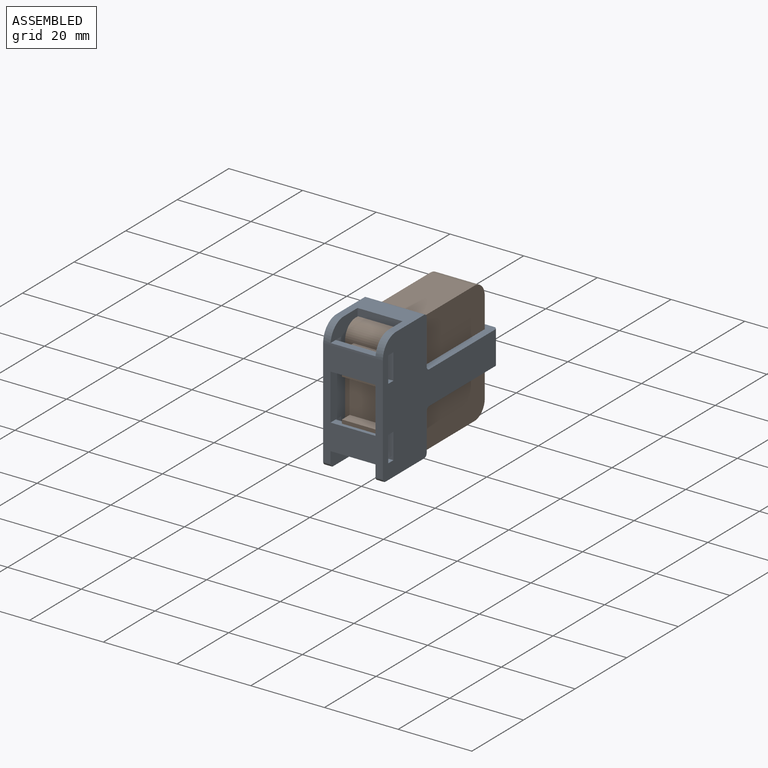
[diagram: assembled view]
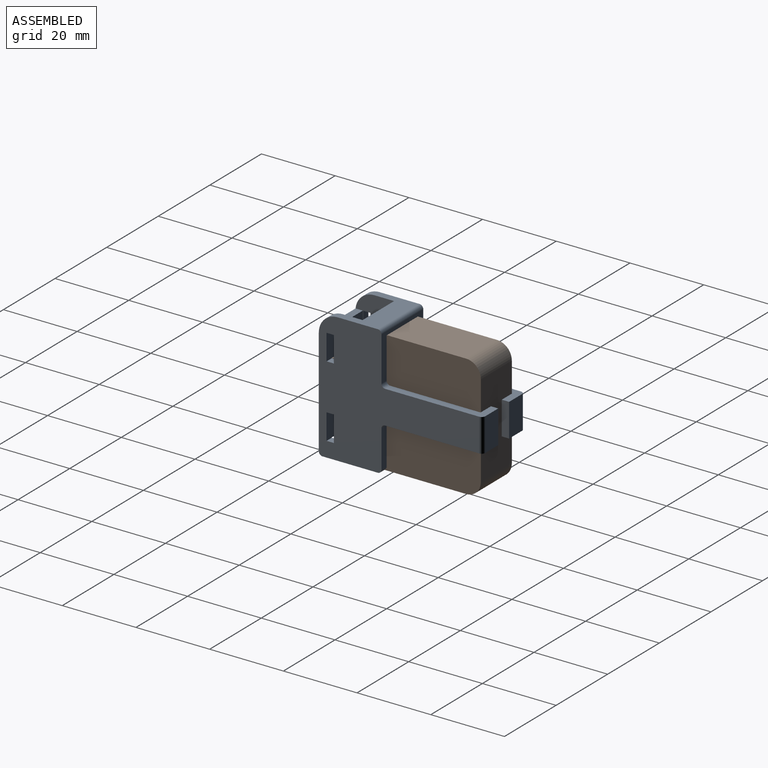
[diagram: assembled view, second angle]
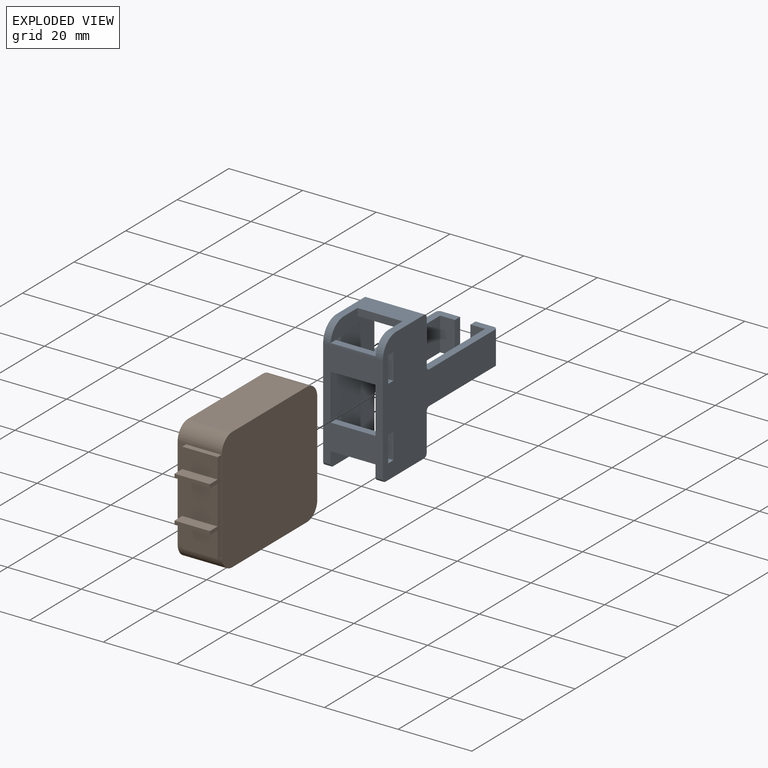
[diagram: exploded view]
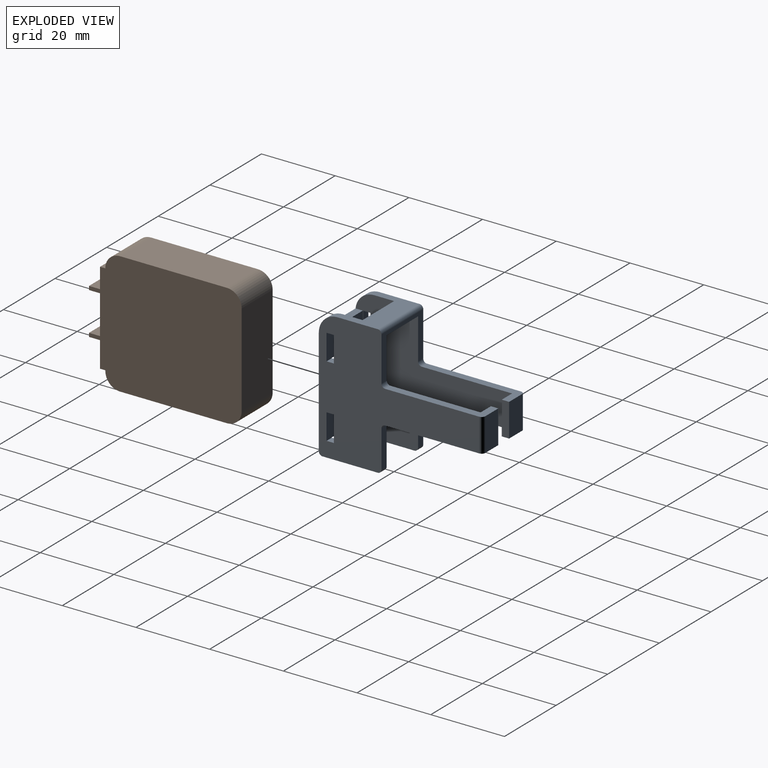
[diagram: exploded view, second angle]
ASSEMBLY  parts=2 mates=2
PART A: 57 faces, bbox 16.2x44.5x35.2 mm
  f0: plane 16.2x10.9mm, normal (0,0,-1), area 110.9mm2, adj f1,f9,f10,f11,f12,f48,f56
  f1: cylinder r=5.1mm len=16.2mm, axis (-1,0,0), area 38.2mm2, adj f0,f4,f9,f10,f11,f12,f53
  f2: plane 12.2x7mm, normal (0,1,0), area 85.4mm2, adj f10,f11,f52,f54
  f3: plane 12.2x7mm, normal (0,1,0), area 85.4mm2, adj f10,f11,f53,f55
  f4: plane 29.1x16.2mm, normal (0,-1,0), area 281.1mm2, adj f1,f6,f9,f10,f11,f12,f51,f52
  f5: plane 15x2mm, normal (0,0,1), area 30mm2, adj f6,f9,f10,f50
  f6: cylinder r=1mm len=2mm, axis (-1,0,0), area 3.1mm2, adj f4,f5,f9,f10
  f7: plane 16.2x12.1mm, normal (0,1,0), area 60.6mm2, adj f9,f10,f11,f12,f15,f45,f46,f48
  f8: plane 10.1x2mm, normal (0,1,0), area 20.2mm2, adj f9,f10,f47,f50
  f9: plane 43.5x35.2mm, normal (1,0,0), area 803.1mm2, adj f0,f1,f4,f5,f6,f7,f8,f24
  f10: plane 42.5x35.2mm, normal (-1,0,0), area 753.3mm2, adj f0,f1,f2,f3,f4,f5,f6,f7
  f11: plane 42.5x35.2mm, normal (1,0,0), area 753.3mm2, adj f0,f1,f2,f3,f4,f7,f13,f14
  f12: plane 43.5x35.2mm, normal (-1,0,0), area 803.1mm2, adj f0,f1,f4,f7,f13,f14,f16,f17
  f13: plane 10.1x2mm, normal (0,1,0), area 20.2mm2, adj f11,f12,f44,f49
  f14: plane 15x2mm, normal (0,0,1), area 30mm2, adj f11,f12,f49,f51
  f15: plane 12.2x6.51mm, normal (0,0,1), area 79.5mm2, adj f7,f10,f11,f56
  f16: plane 2x2mm, normal (0,0,-1), area 4mm2, adj f11,f12,f17,f19
  f17: plane 7x2mm, normal (0,-1,0), area 14mm2, adj f11,f12,f16,f18
  f18: plane 2x2mm, normal (0,0,1), area 4mm2, adj f11,f12,f17,f19
  f19: plane 7x2mm, normal (0,1,0), area 14mm2, adj f11,f12,f16,f18
  f20: plane 2x2mm, normal (0,0,-1), area 4mm2, adj f11,f12,f21,f23
  f21: plane 7x2mm, normal (0,-1,0), area 14mm2, adj f11,f12,f20,f22
  f22: plane 2x2mm, normal (0,0,1), area 4mm2, adj f11,f12,f21,f23
  f23: plane 7x2mm, normal (0,1,0), area 14mm2, adj f11,f12,f20,f22
  f24: plane 7x2mm, normal (0,1,0), area 14mm2, adj f9,f10,f25,f27
  f25: plane 2x2mm, normal (0,0,1), area 4mm2, adj f9,f10,f24,f26
  f26: plane 7x2mm, normal (0,-1,0), area 14mm2, adj f9,f10,f25,f27
  f27: plane 2x2mm, normal (0,0,-1), area 4mm2, adj f9,f10,f24,f26
  f28: plane 7x2mm, normal (0,1,0), area 14mm2, adj f9,f10,f29,f31
  f29: plane 2x2mm, normal (0,0,1), area 4mm2, adj f9,f10,f28,f30
  f30: plane 7x2mm, normal (0,-1,0), area 14mm2, adj f9,f10,f29,f31
  f31: plane 2x2mm, normal (0,0,-1), area 4mm2, adj f9,f10,f28,f30
  f32: plane 26.5x6mm, normal (0,0,1), area 60.8mm2, adj f9,f10,f36,f37,f38,f43,f47
  f33: plane 26.5x6mm, normal (0,0,-1), area 60.8mm2, adj f9,f10,f36,f37,f38,f43,f46
  f34: plane 26.5x6mm, normal (0,0,1), area 60.8mm2, adj f11,f12,f39,f40,f41,f42,f44
  f35: plane 26.5x6mm, normal (0,0,-1), area 60.8mm2, adj f11,f12,f39,f40,f41,f42,f45
  f36: plane 9x2mm, normal (-1,0,0), area 18mm2, adj f32,f33,f37,f38
  f37: plane 9x5mm, normal (0,1,0), area 45mm2, adj f32,f33,f36,f43
  f38: plane 9x4mm, normal (0,-1,0), area 36mm2, adj f10,f32,f33,f36
  f39: plane 9x4mm, normal (0,-1,0), area 36mm2, adj f11,f34,f35,f40
  f40: plane 9x2mm, normal (1,0,0), area 18mm2, adj f34,f35,f39,f41
  f41: plane 9x5mm, normal (0,1,0), area 45mm2, adj f34,f35,f40,f42
  f42: cylinder r=1mm len=9mm, axis (0,0,1), area 14.1mm2, adj f12,f34,f35,f41
  f43: cylinder r=1mm len=9mm, axis (0,0,-1), area 14.1mm2, adj f9,f32,f33,f37
  f44: cylinder r=1mm len=2mm, axis (1,0,0), area 3.1mm2, adj f11,f12,f13,f34
  f45: cylinder r=1mm len=2mm, axis (-1,0,0), area 3.1mm2, adj f7,f11,f12,f35
  f46: cylinder r=1mm len=2mm, axis (-1,0,0), area 3.1mm2, adj f7,f9,f10,f33
  f47: cylinder r=1mm len=2mm, axis (1,0,0), area 3.1mm2, adj f8,f9,f10,f32
  f48: cylinder r=1mm len=16.2mm, axis (1,0,0), area 25.4mm2, adj f0,f7,f9,f12
  f49: cylinder r=1mm len=2mm, axis (1,0,0), area 3.1mm2, adj f11,f12,f13,f14
  f50: cylinder r=1mm len=2mm, axis (-1,0,0), area 3.1mm2, adj f5,f8,f9,f10
  f51: cylinder r=1mm len=2mm, axis (-1,0,0), area 3.1mm2, adj f4,f11,f12,f14
  f52: plane 12.2x2mm, normal (0,0,1), area 24.4mm2, adj f2,f4,f10,f11
  f53: plane 12.2x1.98mm, normal (0,0,-1), area 24.1mm2, adj f1,f3,f10,f11
  f54: plane 12.2x2mm, normal (0,0,-1), area 24.4mm2, adj f2,f4,f10,f11
  f55: plane 12.2x2mm, normal (0,0,1), area 24.4mm2, adj f3,f4,f10,f11
  f56: plane 12.2x2mm, normal (0,-1,0), area 24.4mm2, adj f0,f10,f11,f15
PART B: 112 faces, bbox 41.5x33.2x12 mm
  f0: plane 9.6x7mm, normal (-1,0,0), area 67.2mm2, adj f101,f102,f104,f109
  f1: plane 10.5x9.6mm, normal (-1,0,0), area 100.8mm2, adj f102,f104,f106,f110
  f2: plane 37x33.2mm, normal (0,0,1), area 1112mm2, adj f3,f4,f5,f6,f7,f8,f9,f10
  f3: plane 25.2x12mm, normal (1,0,0), area 302.4mm2, adj f2,f4,f10,f11
  f4: cylinder r=4mm len=12mm, axis (0,0,-1), area 75.4mm2, adj f2,f3,f5,f11
  f5: plane 29x12mm, normal (0,1,0), area 348mm2, adj f2,f4,f6,f11
  f6: cylinder r=4mm len=12mm, axis (0,0,-1), area 75.4mm2, adj f2,f5,f7,f11
  f7: plane 25.2x12mm, normal (-1,0,0), area 62.4mm2, adj f2,f6,f8,f11,f101,f102,f103,f104
  f8: cylinder r=4mm len=12mm, axis (0,0,-1), area 75.4mm2, adj f2,f7,f9,f11
  f9: plane 29x12mm, normal (0,-1,0), area 348mm2, adj f2,f8,f10,f11
  f10: cylinder r=4mm len=12mm, axis (0,0,-1), area 75.4mm2, adj f2,f3,f9,f11
  f11: plane 37x33.2mm, normal (0,0,-1), area 1214.7mm2, adj f3,f4,f5,f6,f7,f8,f9,f10
  f12: extruded ~2x1.83mm, area 4mm2, adj f13,f25,f26,f98
  f13: extruded ~2x1.88mm, area 4.1mm2, adj f12,f14,f26,f98
  f14: extruded ~2x1.94mm, area 4.2mm2, adj f13,f15,f26,f98
  f15: plane 2x0.88mm, normal (-1,0,0), area 1.8mm2, adj f14,f16,f26,f98
  f16: plane 4.97x2mm, normal (0,1,0), area 9.9mm2, adj f15,f17,f26,f98
  f17: plane 2x1.05mm, normal (1,0,0), area 2.1mm2, adj f16,f25,f26,f98
  f18: extruded ~2.35x2mm, area 5.1mm2, adj f2,f19,f24,f26
  f19: extruded ~2.25x2mm, area 4.9mm2, adj f2,f18,f20,f26
  f20: extruded ~2.25x2mm, area 4.9mm2, adj f2,f19,f21,f26
  f21: plane 2x1.91mm, normal (-1,0,0), area 3.8mm2, adj f2,f20,f22,f26
  f22: plane 6.22x2mm, normal (0,-1,0), area 12.4mm2, adj f2,f21,f23,f26
  f23: plane 2x1.72mm, normal (1,0,0), area 3.4mm2, adj f2,f22,f24,f26
  f24: extruded ~2.4x2mm, area 5.2mm2, adj f2,f18,f23,f26
  f25: extruded ~2x1.81mm, area 3.9mm2, adj f12,f17,f26,f98
  f26: plane 6.22x4.96mm, normal (0,0,1), area 12.2mm2, adj f12,f13,f14,f15,f16,f17,f18,f19
  f27: extruded ~2x1.92mm, area 4.1mm2, adj f28,f42,f43,f99
  f28: extruded ~2x1.9mm, area 4mm2, adj f27,f29,f43,f99
  f29: extruded ~2x1.57mm, area 3.5mm2, adj f28,f30,f43,f99
  f30: extruded ~2x1.55mm, area 3.5mm2, adj f29,f31,f43,f99
  f31: extruded ~2x1.9mm, area 4mm2, adj f30,f32,f43,f99
  f32: extruded ~2x1.92mm, area 4.1mm2, adj f31,f33,f43,f99
  f33: extruded ~2x1.56mm, area 3.5mm2, adj f32,f42,f43,f99
  f34: extruded ~2.35x2mm, area 5mm2, adj f2,f35,f41,f43
  f35: extruded ~2.35x2mm, area 5mm2, adj f2,f34,f36,f43
  f36: extruded ~2.09x2mm, area 4.7mm2, adj f2,f35,f37,f43
  f37: extruded ~2.13x2mm, area 4.7mm2, adj f2,f36,f38,f43
  f38: extruded ~2.35x2mm, area 5.1mm2, adj f2,f37,f39,f43
  f39: extruded ~2.37x2mm, area 5.1mm2, adj f2,f38,f40,f43
  f40: extruded ~2.12x2mm, area 4.7mm2, adj f2,f39,f41,f43
  f41: extruded ~2.1x2mm, area 4.7mm2, adj f2,f34,f40,f43
  f42: extruded ~2x1.56mm, area 3.5mm2, adj f27,f33,f43,f99
  f43: plane 6.4x5.72mm, normal (0,0,1), area 12.2mm2, adj f27,f28,f29,f30,f31,f32,f33,f34
  f44: extruded ~2x1.83mm, area 4mm2, adj f45,f57,f58,f100
  f45: extruded ~2x1.88mm, area 4.1mm2, adj f44,f46,f58,f100
  f46: extruded ~2x1.94mm, area 4.2mm2, adj f45,f47,f58,f100
  f47: plane 2x0.88mm, normal (-1,0,0), area 1.8mm2, adj f46,f48,f58,f100
  f48: plane 4.97x2mm, normal (0,1,0), area 9.9mm2, adj f47,f49,f58,f100
  f49: plane 2x1.05mm, normal (1,0,0), area 2.1mm2, adj f48,f57,f58,f100
  f50: extruded ~2.35x2mm, area 5.1mm2, adj f2,f51,f56,f58
  f51: extruded ~2.25x2mm, area 4.9mm2, adj f2,f50,f52,f58
  f52: extruded ~2.25x2mm, area 4.9mm2, adj f2,f51,f53,f58
  f53: plane 2x1.91mm, normal (-1,0,0), area 3.8mm2, adj f2,f52,f54,f58
  f54: plane 6.22x2mm, normal (0,-1,0), area 12.4mm2, adj f2,f53,f55,f58
  f55: plane 2x1.72mm, normal (1,0,0), area 3.4mm2, adj f2,f54,f56,f58
  f56: extruded ~2.4x2mm, area 5.2mm2, adj f2,f50,f55,f58
  f57: extruded ~2x1.81mm, area 3.9mm2, adj f44,f49,f58,f100
  f58: plane 6.22x4.96mm, normal (0,0,1), area 12.2mm2, adj f44,f45,f46,f47,f48,f49,f50,f51
  f59: plane 2x0.78mm, normal (-1,0,0), area 1.6mm2, adj f2,f60,f67,f68
  f60: plane 4x2mm, normal (-0.33,-0.94,0), area 8.5mm2, adj f2,f59,f61,f68
  f61: extruded ~2x1.37mm, area 2.9mm2, adj f2,f60,f62,f68
  f62: extruded ~2x1.35mm, area 2.8mm2, adj f2,f61,f63,f68
  f63: plane 4.02x2mm, normal (-0.33,0.94,0), area 8.5mm2, adj f2,f62,f64,f68
  f64: plane 2x0.77mm, normal (-1,0,0), area 1.5mm2, adj f2,f63,f65,f68
  f65: plane 6.22x2.23mm, normal (0.34,-0.94,0), area 13.2mm2, adj f2,f64,f66,f68
  f66: plane 2x0.71mm, normal (1,0,0), area 1.4mm2, adj f2,f65,f67,f68
  f67: plane 6.22x2.24mm, normal (0.34,0.94,0), area 13.2mm2, adj f2,f59,f66,f68
  f68: plane 6.22x5.18mm, normal (0,0,1), area 9mm2, adj f59,f60,f61,f62,f63,f64,f65,f66
  f69: extruded ~2x0.97mm, area 2.1mm2, adj f2,f70,f96,f97
  f70: extruded ~2x1.14mm, area 2.6mm2, adj f2,f69,f71,f97
  f71: extruded ~2x1.41mm, area 3mm2, adj f2,f70,f72,f97
  f72: extruded ~2x1.05mm, area 2.1mm2, adj f2,f71,f73,f97
  f73: extruded ~2x0.88mm, area 2mm2, adj f2,f72,f74,f97
  f74: plane 2x0.48mm, normal (0.6,-0.8,0), area 1.2mm2, adj f2,f73,f75,f97
  f75: extruded ~2x0.83mm, area 1.8mm2, adj f2,f74,f76,f97
  f76: extruded ~2x0.77mm, area 1.6mm2, adj f2,f75,f77,f97
  f77: extruded ~2x0.85mm, area 1.8mm2, adj f2,f76,f78,f97
  f78: extruded ~2x0.71mm, area 1.6mm2, adj f2,f77,f79,f97
  f79: extruded ~2x0.89mm, area 2.1mm2, adj f2,f78,f80,f97
  f80: extruded ~2x1.15mm, area 2.4mm2, adj f2,f79,f81,f97
  f81: plane 2x0.62mm, normal (-1,0,0), area 1.2mm2, adj f2,f80,f82,f97
  f82: plane 2x0.61mm, normal (0,-1,0), area 1.2mm2, adj f2,f81,f83,f97
  f83: plane 2x0.61mm, normal (1,0,0), area 1.2mm2, adj f2,f82,f84,f97
  f84: extruded ~2x1.78mm, area 4.8mm2, adj f2,f83,f85,f97
  f85: extruded ~2x1.61mm, area 4.7mm2, adj f2,f84,f86,f97
  f86: extruded ~2x0.87mm, area 1.7mm2, adj f2,f85,f87,f97
  f87: extruded ~2x0.86mm, area 1.8mm2, adj f2,f86,f88,f97
  f88: plane 2x0.67mm, normal (0,-1,0), area 1.3mm2, adj f2,f87,f89,f97
  f89: extruded ~2x0.8mm, area 1.7mm2, adj f2,f88,f90,f97
  f90: extruded ~2x0.9mm, area 1.8mm2, adj f2,f89,f91,f97
  f91: extruded ~2x1.75mm, area 3.7mm2, adj f2,f90,f92,f97
  f92: extruded ~2x1.37mm, area 3.1mm2, adj f2,f91,f93,f97
  f93: extruded ~2x1mm, area 2.2mm2, adj f2,f92,f94,f97
  f94: extruded ~2x1.11mm, area 2.5mm2, adj f2,f93,f95,f97
  f95: plane 2x0.03mm, normal (0,1,0), area 0.1mm2, adj f2,f94,f96,f97
  f96: extruded ~2x0.95mm, area 2.2mm2, adj f2,f69,f95,f97
  f97: plane 6.39x4.07mm, normal (0,0,1), area 9mm2, adj f69,f70,f71,f72,f73,f74,f75,f76
  f98: plane 4.97x3.48mm, normal (0,0,1), area 15.2mm2, adj f12,f13,f14,f15,f16,f17,f25
  f99: plane 5.12x4.19mm, normal (0,0,1), area 17.8mm2, adj f27,f28,f29,f30,f31,f32,f33,f42
  f100: plane 4.97x3.48mm, normal (0,0,1), area 15.2mm2, adj f44,f45,f46,f47,f48,f49,f57
  f101: plane 9.6x1.5mm, normal (0,1,0), area 14.4mm2, adj f0,f7,f102,f104
  f102: plane 25x4.5mm, normal (0,0,-1), area 43.5mm2, adj f0,f1,f7,f101,f103,f105,f106,f107
  f103: plane 9.6x1.5mm, normal (0,-1,0), area 14.4mm2, adj f7,f102,f104,f105
  f104: plane 25x4.5mm, normal (0,0,1), area 43.5mm2, adj f0,f1,f7,f101,f103,f105,f106,f107
  f105: plane 9.6x5.5mm, normal (-1,0,0), area 52.8mm2, adj f102,f103,f104,f107
  f106: plane 9.6x3mm, normal (0,1,0), area 28.8mm2, adj f1,f102,f104,f108
  f107: plane 9.6x3mm, normal (0,-1,0), area 28.8mm2, adj f102,f104,f105,f108
  f108: plane 9.6x1mm, normal (-1,0,0), area 9.6mm2, adj f102,f104,f106,f107
  f109: plane 9.6x3mm, normal (0,1,0), area 28.8mm2, adj f0,f102,f104,f111
  f110: plane 9.6x3mm, normal (0,-1,0), area 28.8mm2, adj f1,f102,f104,f111
  f111: plane 9.6x1mm, normal (-1,0,0), area 9.6mm2, adj f102,f104,f109,f110
PLACE A rot(axis=(0,1,0),180deg) t=(-44.01,-56.73,29.89)mm
PLACE B rot(axis=(-0.58,-0.58,0.58),120deg) t=(-38.01,-17.77,9.02)mm
MATE planar B.f3 <-> A.f39  axis (0,1,0) through (-44.01,4.97,13.29)mm
MATE planar B.f9 <-> A.f15  axis (0,0,1) through (-44.01,-13.53,29.89)mm
